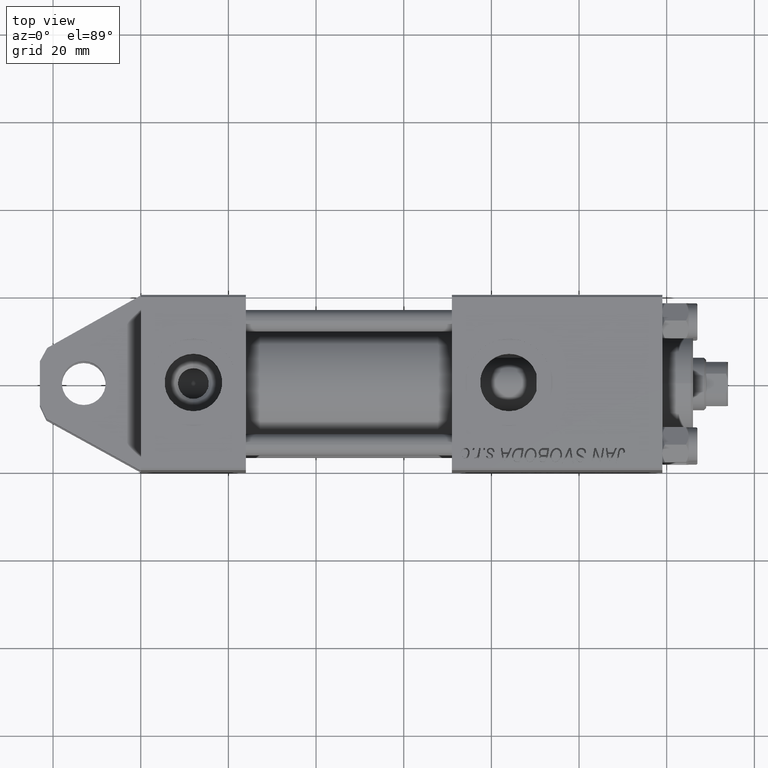
[diagram: clean part render]
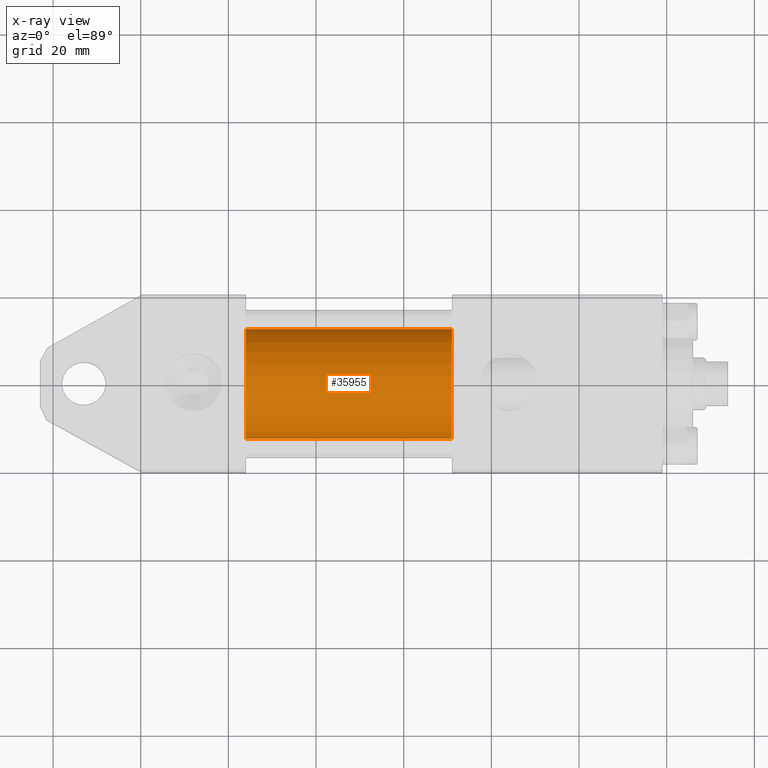
[diagram: x-ray — body ghosted, one internal face saturated and labeled with its STEP entity id]
A machine part, top view, then the same camera in x-ray: the body is ghosted and one INTERNAL B-rep face — a face not visible from any outside direction — is saturated and labeled: STEP entity #35955.
In plain terms, the highlighted cylindrical surface (partial cylindrical patch) has radius 12.5 mm, axis along (-1, -0, 0).
Its self-contained STEP definition (entity closure, byte-faithful):
#3599 = DIRECTION ( 'NONE',  ( -1.000000000000000000, -0.000000000000000000, -0.000000000000000000 ) ) ;
#3796 = DIRECTION ( 'NONE',  ( 0.000000000000000000, 0.000000000000000000, 1.000000000000000000 ) ) ;
#5676 = LINE ( 'NONE', #24981, #31152 ) ;
#6170 = ORIENTED_EDGE ( 'NONE', *, *, #8760, .F. ) ;
#8760 = EDGE_CURVE ( 'NONE', #17157, #46585, #28091, .T. ) ;
#12258 = CARTESIAN_POINT ( 'NONE',  ( 24.00000000000000000, -3.469446951953614189E-15, 0.000000000000000000 ) ) ;
#13512 = LINE ( 'NONE', #21266, #37248 ) ;
#13795 = ORIENTED_EDGE ( 'NONE', *, *, #31139, .T. ) ;
#16762 = DIRECTION ( 'NONE',  ( 0.000000000000000000, 0.000000000000000000, -1.000000000000000000 ) ) ;
#16881 = CARTESIAN_POINT ( 'NONE',  ( 71.00000000000001421, -3.469446951953614189E-15, 0.000000000000000000 ) ) ;
#17157 = VERTEX_POINT ( 'NONE', #19916 ) ;
#18212 = VERTEX_POINT ( 'NONE', #35734 ) ;
#19379 = ORIENTED_EDGE ( 'NONE', *, *, #42797, .T. ) ;
#19916 = CARTESIAN_POINT ( 'NONE',  ( 24.00000000000000000, -3.469446951953614189E-15, 12.49999999999999645 ) ) ;
#20441 = EDGE_CURVE ( 'NONE', #40969, #17157, #13512, .T. ) ;
#21266 = CARTESIAN_POINT ( 'NONE',  ( 71.00000000000001421, -3.469446951953614189E-15, 12.49999999999999645 ) ) ;
#21445 = CIRCLE ( 'NONE', #31074, 12.49999999999999645 ) ;
#24981 = CARTESIAN_POINT ( 'NONE',  ( 71.00000000000001421, -1.938638453019422865E-15, -12.49999999999999645 ) ) ;
#27551 = DIRECTION ( 'NONE',  ( 1.000000000000000000, 0.000000000000000000, 0.000000000000000000 ) ) ;
#28091 = CIRCLE ( 'NONE', #42525, 12.49999999999999645 ) ;
#29462 = CARTESIAN_POINT ( 'NONE',  ( 24.00000000000000000, -1.938638453019422865E-15, -12.49999999999999645 ) ) ;
#30661 = FACE_OUTER_BOUND ( 'NONE', #40514, .T. ) ;
#31074 = AXIS2_PLACEMENT_3D ( 'NONE', #16881, #35454, #31436 ) ;
#31139 = EDGE_CURVE ( 'NONE', #40969, #18212, #21445, .T. ) ;
#31152 = VECTOR ( 'NONE', #47609, 1000.000000000000000 ) ;
#31436 = DIRECTION ( 'NONE',  ( 0.000000000000000000, 0.000000000000000000, -1.000000000000000000 ) ) ;
#33344 = AXIS2_PLACEMENT_3D ( 'NONE', #38192, #37945, #3796 ) ;
#35454 = DIRECTION ( 'NONE',  ( 1.000000000000000000, 0.000000000000000000, 0.000000000000000000 ) ) ;
#35734 = CARTESIAN_POINT ( 'NONE',  ( 71.00000000000001421, -1.938638453019422865E-15, -12.49999999999999645 ) ) ;
#35955 = ADVANCED_FACE ( 'NONE', ( #30661 ), #37446, .F. ) ;
#37248 = VECTOR ( 'NONE', #3599, 1000.000000000000000 ) ;
#37446 = CYLINDRICAL_SURFACE ( 'NONE', #33344, 12.49999999999999645 ) ;
#37945 = DIRECTION ( 'NONE',  ( -1.000000000000000000, -0.000000000000000000, -0.000000000000000000 ) ) ;
#38192 = CARTESIAN_POINT ( 'NONE',  ( 71.00000000000001421, -3.469446951953614189E-15, 0.000000000000000000 ) ) ;
#40095 = CARTESIAN_POINT ( 'NONE',  ( 71.00000000000001421, -3.469446951953614189E-15, 12.49999999999999645 ) ) ;
#40514 = EDGE_LOOP ( 'NONE', ( #13795, #19379, #6170, #40972 ) ) ;
#40969 = VERTEX_POINT ( 'NONE', #40095 ) ;
#40972 = ORIENTED_EDGE ( 'NONE', *, *, #20441, .F. ) ;
#42525 = AXIS2_PLACEMENT_3D ( 'NONE', #12258, #27551, #16762 ) ;
#42797 = EDGE_CURVE ( 'NONE', #18212, #46585, #5676, .T. ) ;
#46585 = VERTEX_POINT ( 'NONE', #29462 ) ;
#47609 = DIRECTION ( 'NONE',  ( -1.000000000000000000, -0.000000000000000000, -0.000000000000000000 ) ) ;